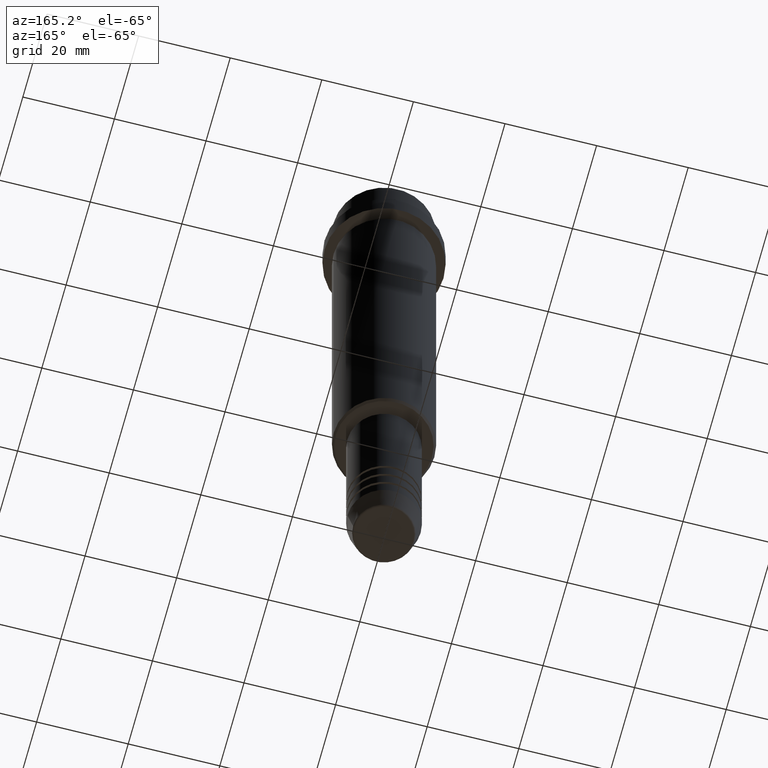
[diagram: clean part render]
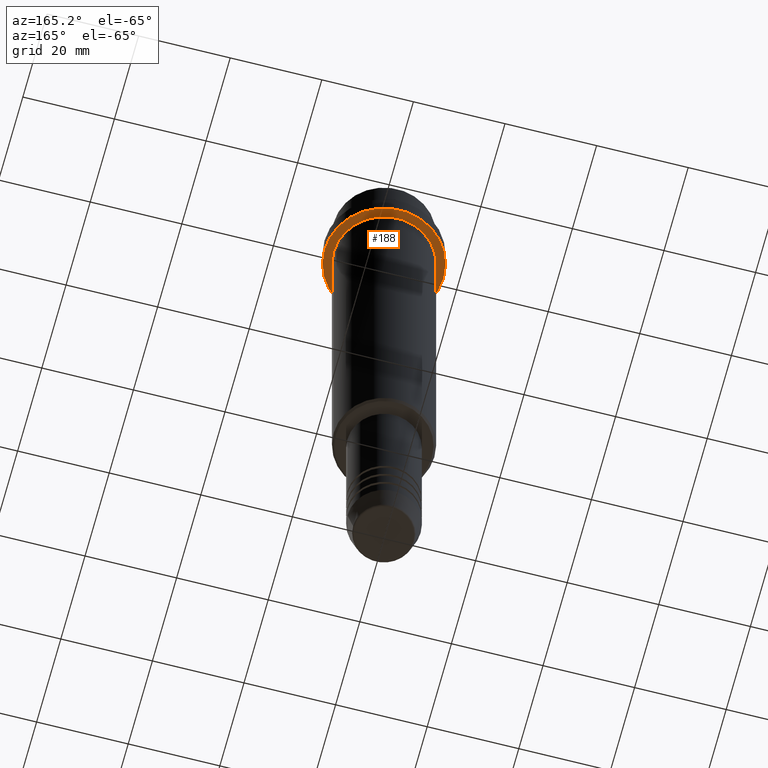
[diagram: same view with one face highlighted and labeled with its STEP entity id]
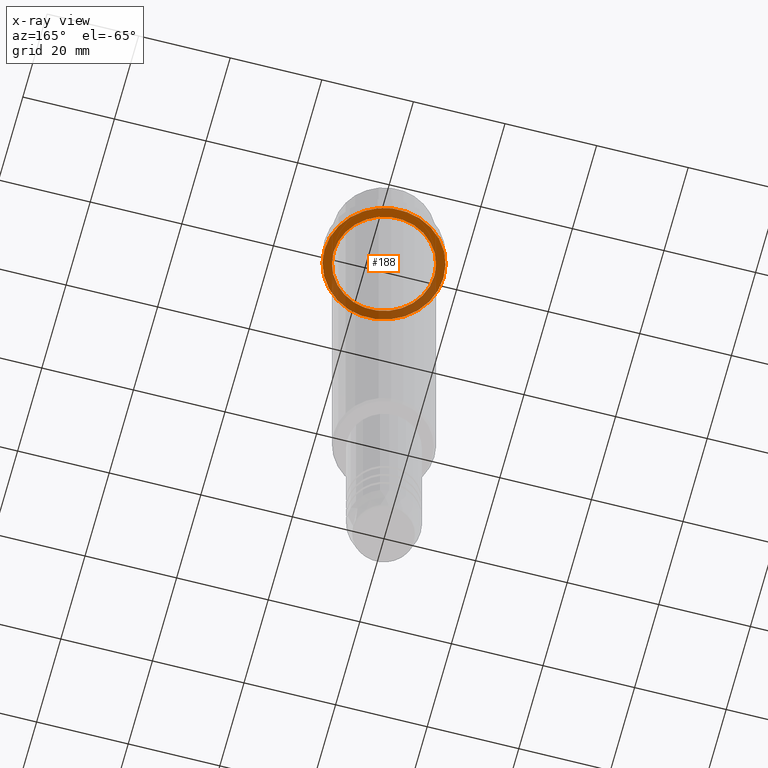
[diagram: x-ray of the same camera — body ghosted, the highlighted face saturated]
A machine part, auxiliary view. The second image highlights one B-rep face of the part: STEP entity #188.
The next image is the same camera in x-ray: the body ghosted, the highlighted face saturated — about 36% of this face is hidden behind the body in this view.
In plain terms, the highlighted planar face has unit normal (0, 0, -1).
Its self-contained STEP definition (entity closure, byte-faithful):
#7 = DIRECTION ( 'NONE',  ( -0.000000000000000000, -0.000000000000000000, 1.000000000000000000 ) ) ;
#64 = DIRECTION ( 'NONE',  ( -1.000000000000000000, 0.000000000000000000, 0.000000000000000000 ) ) ;
#86 = FACE_BOUND ( 'NONE', #350, .T. ) ;
#89 = DIRECTION ( 'NONE',  ( -0.000000000000000000, -0.000000000000000000, 1.000000000000000000 ) ) ;
#118 = CARTESIAN_POINT ( 'NONE',  ( 13.00000000000000000, 0.000000000000000000, -15.00000000000000178 ) ) ;
#153 = CIRCLE ( 'NONE', #649, 10.99999999999996625 ) ;
#164 = EDGE_CURVE ( 'NONE', #604, #249, #407, .T. ) ;
#179 = CARTESIAN_POINT ( 'NONE',  ( -13.00000000000000000, 1.592040838891559095E-15, -15.00000000000000178 ) ) ;
#180 = CIRCLE ( 'NONE', #1017, 13.00000000000000000 ) ;
#188 = ADVANCED_FACE ( 'NONE', ( #86, #1294 ), #1396, .T. ) ;
#241 = CARTESIAN_POINT ( 'NONE',  ( 0.000000000000000000, 0.000000000000000000, -15.00000000000000355 ) ) ;
#249 = VERTEX_POINT ( 'NONE', #179 ) ;
#256 = CARTESIAN_POINT ( 'NONE',  ( 0.000000000000000000, 0.000000000000000000, -15.00000000000000178 ) ) ;
#300 = VERTEX_POINT ( 'NONE', #376 ) ;
#350 = EDGE_LOOP ( 'NONE', ( #1209, #1405 ) ) ;
#376 = CARTESIAN_POINT ( 'NONE',  ( 10.99999999999996625, 1.347111479062084460E-15, -15.00000000000000355 ) ) ;
#407 = CIRCLE ( 'NONE', #1203, 13.00000000000000000 ) ;
#410 = CIRCLE ( 'NONE', #1205, 10.99999999999996625 ) ;
#474 = ORIENTED_EDGE ( 'NONE', *, *, #164, .F. ) ;
#506 = CARTESIAN_POINT ( 'NONE',  ( 0.000000000000000000, 0.000000000000000000, -15.00000000000000355 ) ) ;
#532 = EDGE_LOOP ( 'NONE', ( #474, #1007 ) ) ;
#587 = AXIS2_PLACEMENT_3D ( 'NONE', #746, #1071, #1186 ) ;
#596 = EDGE_CURVE ( 'NONE', #1221, #300, #410, .T. ) ;
#604 = VERTEX_POINT ( 'NONE', #118 ) ;
#649 = AXIS2_PLACEMENT_3D ( 'NONE', #506, #89, #64 ) ;
#692 = EDGE_CURVE ( 'NONE', #249, #604, #180, .T. ) ;
#693 = DIRECTION ( 'NONE',  ( 1.000000000000000000, 0.000000000000000000, 0.000000000000000000 ) ) ;
#729 = CARTESIAN_POINT ( 'NONE',  ( 0.000000000000000000, 0.000000000000000000, -15.00000000000000178 ) ) ;
#746 = CARTESIAN_POINT ( 'NONE',  ( 0.000000000000000000, 13.00000000000000000, -15.00000000000000355 ) ) ;
#1007 = ORIENTED_EDGE ( 'NONE', *, *, #692, .F. ) ;
#1017 = AXIS2_PLACEMENT_3D ( 'NONE', #256, #1241, #693 ) ;
#1034 = CARTESIAN_POINT ( 'NONE',  ( -10.99999999999996625, 0.000000000000000000, -15.00000000000000355 ) ) ;
#1059 = DIRECTION ( 'NONE',  ( -0.000000000000000000, -0.000000000000000000, 1.000000000000000000 ) ) ;
#1071 = DIRECTION ( 'NONE',  ( 0.000000000000000000, 0.000000000000000000, -1.000000000000000000 ) ) ;
#1100 = DIRECTION ( 'NONE',  ( -1.000000000000000000, 0.000000000000000000, 0.000000000000000000 ) ) ;
#1186 = DIRECTION ( 'NONE',  ( -1.000000000000000000, 0.000000000000000000, -0.000000000000000000 ) ) ;
#1203 = AXIS2_PLACEMENT_3D ( 'NONE', #729, #1059, #1410 ) ;
#1205 = AXIS2_PLACEMENT_3D ( 'NONE', #241, #7, #1100 ) ;
#1209 = ORIENTED_EDGE ( 'NONE', *, *, #596, .T. ) ;
#1221 = VERTEX_POINT ( 'NONE', #1034 ) ;
#1230 = EDGE_CURVE ( 'NONE', #300, #1221, #153, .T. ) ;
#1241 = DIRECTION ( 'NONE',  ( -0.000000000000000000, -0.000000000000000000, 1.000000000000000000 ) ) ;
#1294 = FACE_OUTER_BOUND ( 'NONE', #532, .T. ) ;
#1396 = PLANE ( 'NONE',  #587 ) ;
#1405 = ORIENTED_EDGE ( 'NONE', *, *, #1230, .T. ) ;
#1410 = DIRECTION ( 'NONE',  ( 1.000000000000000000, 0.000000000000000000, 0.000000000000000000 ) ) ;